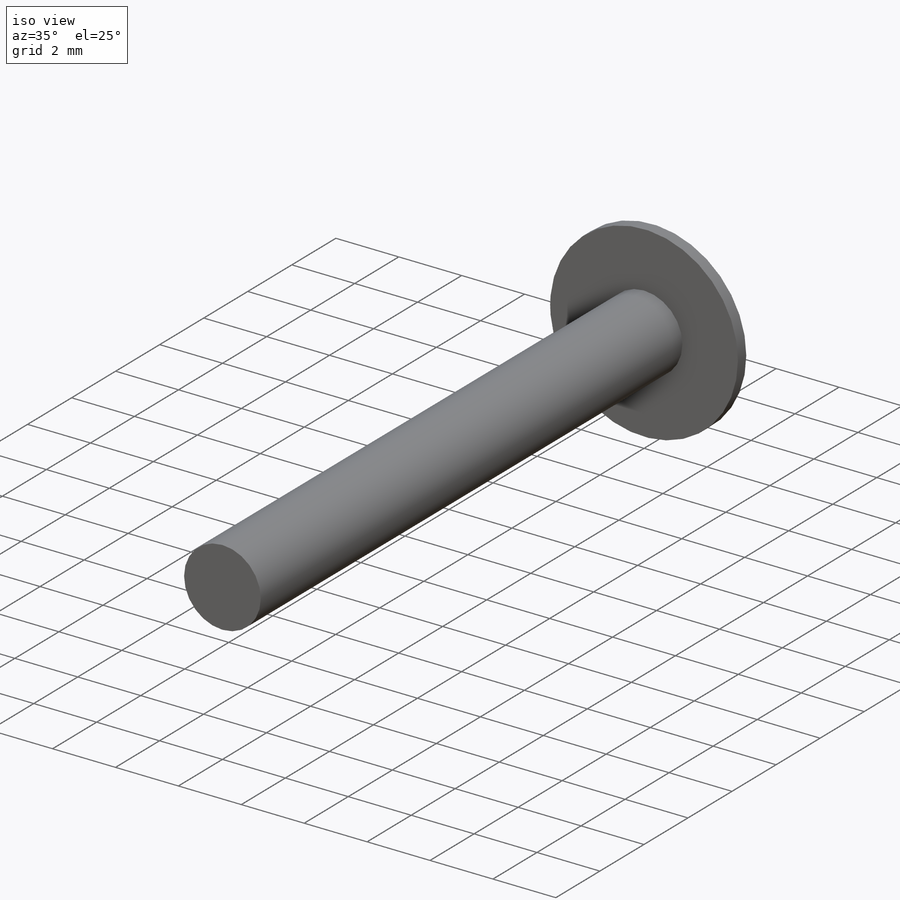
[diagram: iso view]
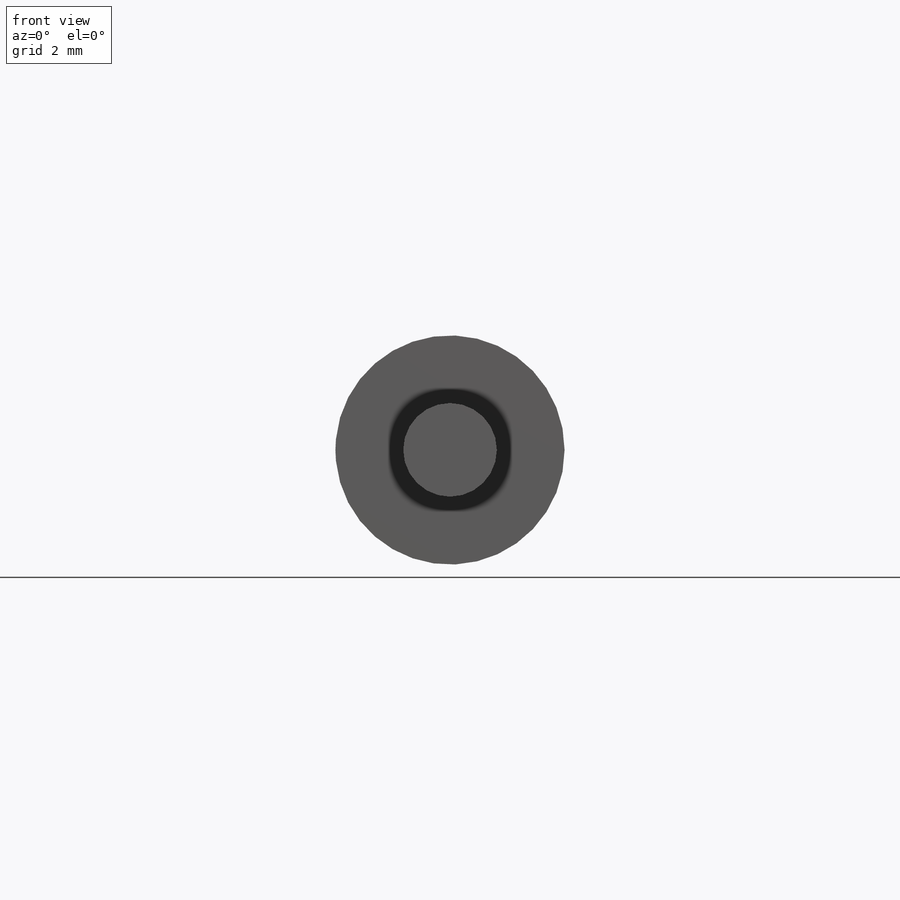
[diagram: front view]
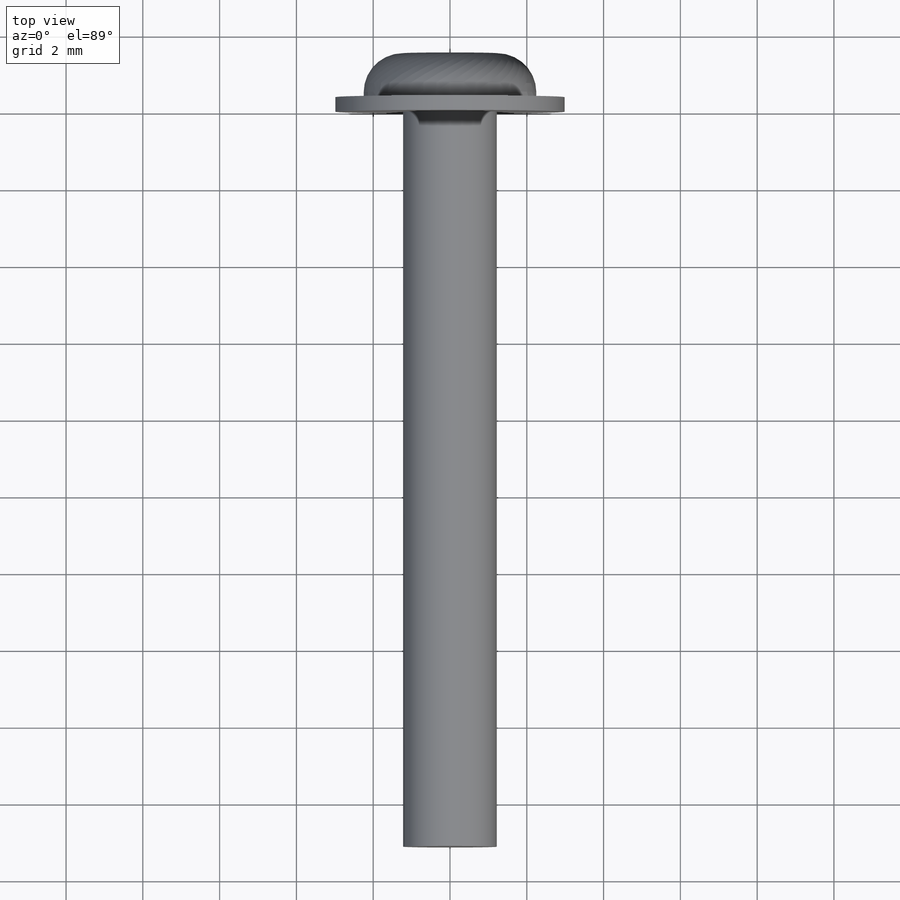
[diagram: top view]
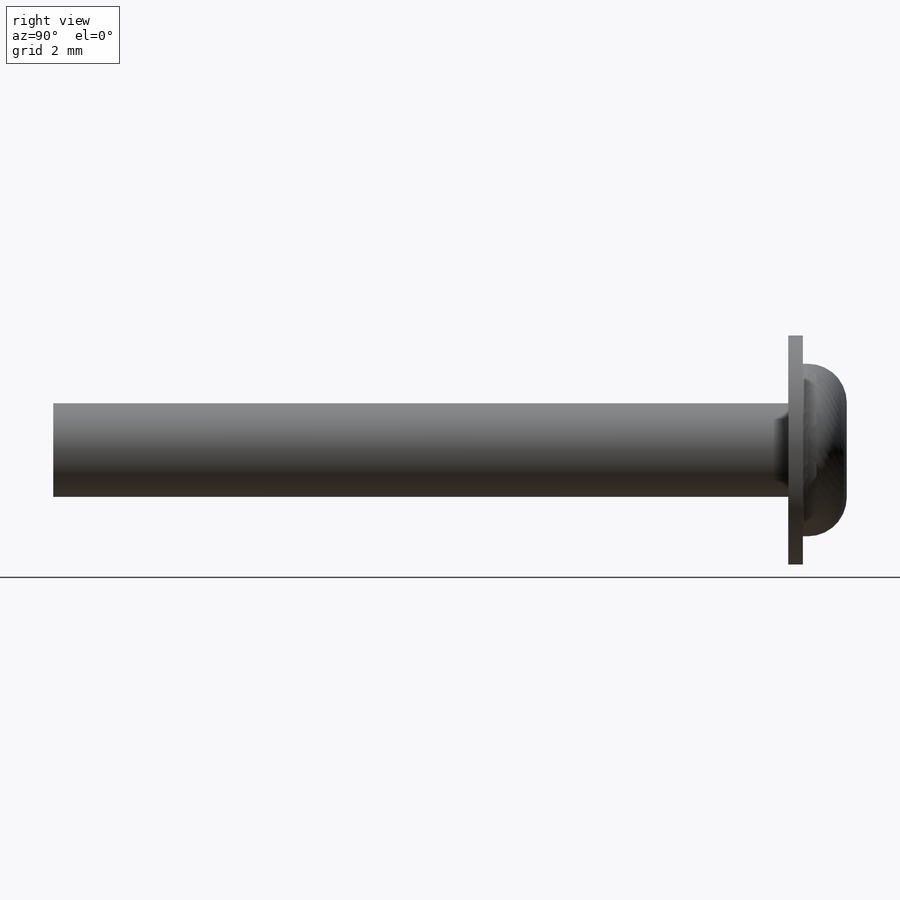
[diagram: right view]
SOLIDWORKS PART (.sldprt)
format: sldprt  version: not decoded by parser v0  size: 177,152 bytes
history: native  units: mm
features: sketch x3, extrude x3, material x1, fillet x1 (+11 scaffold rows collapsed)
feature tree (19):
  scaffold x11  (default folders/planes/origin — collapsed)
  material  "Chrome Stainless Steel"
  sketch  "Sketch1"  dims[D1=2.4384mm]
  extrude  "Extrude1"  Depth=19.144mm
  sketch  "Sketch2"  dims[D1=5.969mm]
  extrude  "Extrude2"  Depth=0.381mm
  sketch  "Sketch3"  dims[D1=4.4958mm]
  extrude  "Extrude3"  Depth=1.143mm
  fillet  "Fillet1"  Radius=1.016mm
decode coverage: 7 of 7 modeling features carry decoded parameters
note: suppression state not decoded; provenance and decode notes live in map.json
